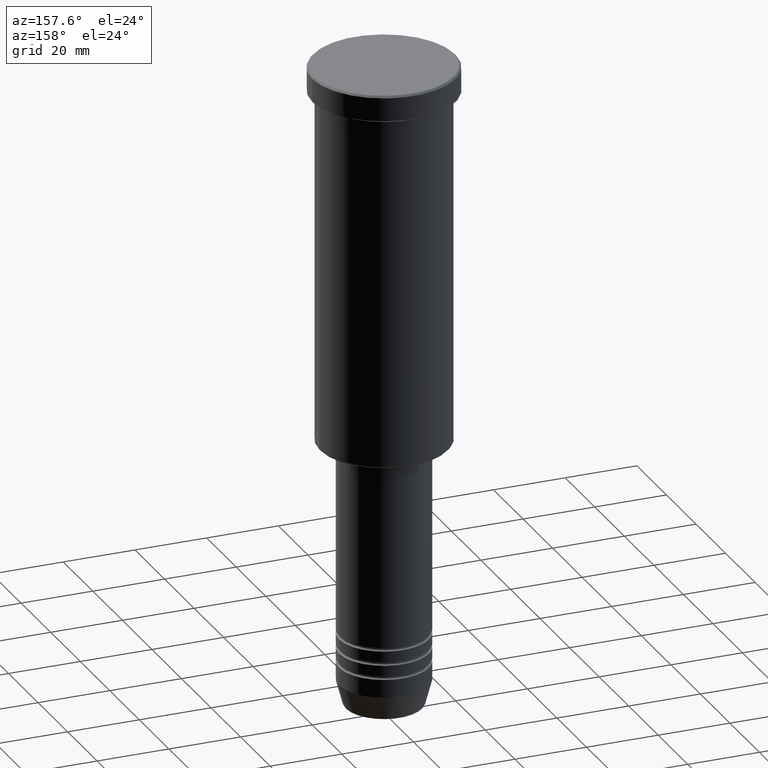
[diagram: clean part render]
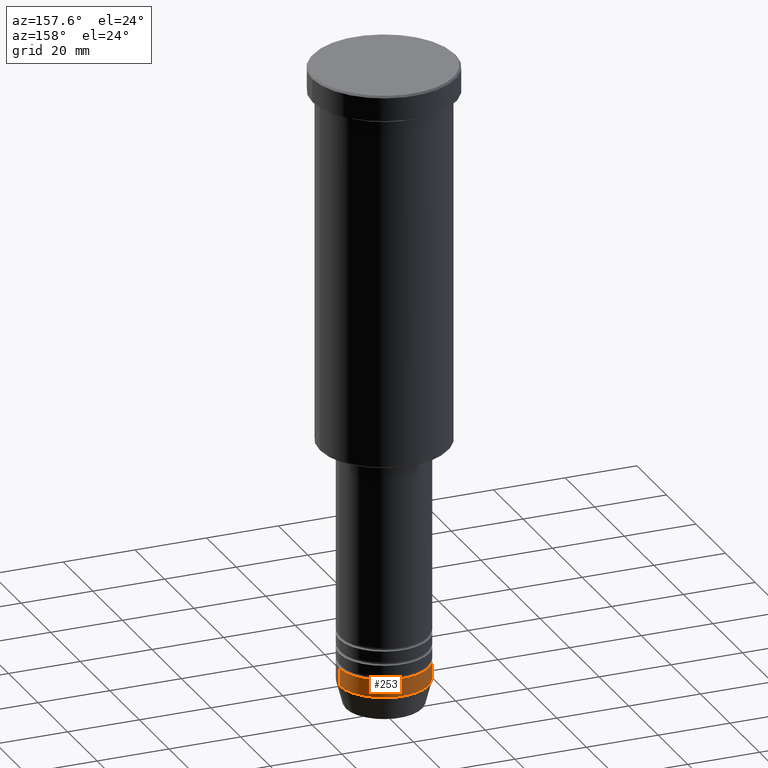
[diagram: same view with one face highlighted and labeled with its STEP entity id]
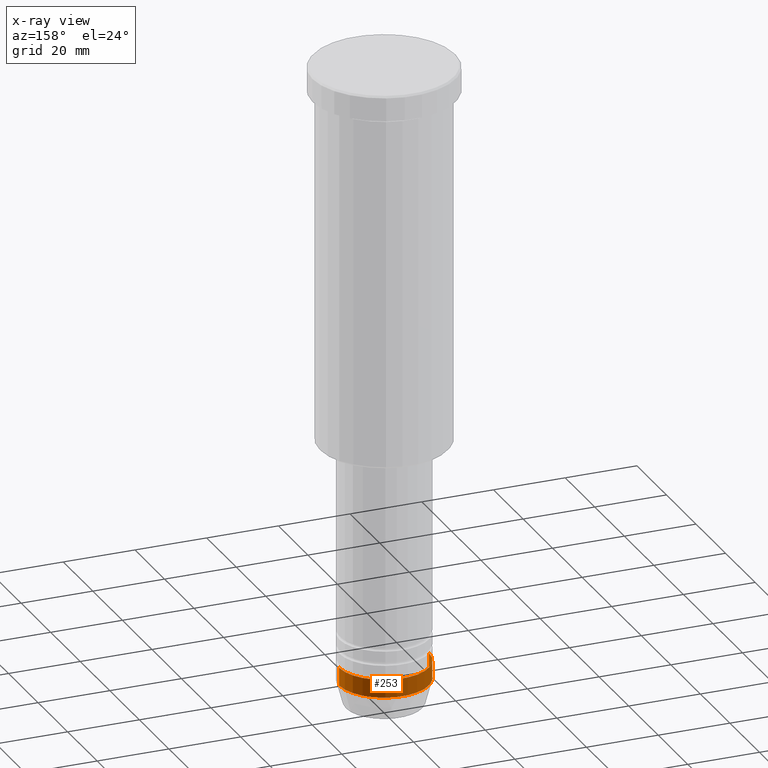
[diagram: x-ray of the same camera — body ghosted, the highlighted face saturated]
A machine part, auxiliary view. The second image highlights one B-rep face of the part: STEP entity #253.
The next image is the same camera in x-ray: the body ghosted, the highlighted face saturated — about 0% of this face is hidden behind the body in this view.
In plain terms, the highlighted cylindrical surface (partial cylindrical patch) has radius 12.5 mm, axis along (-0, -0, 1).
Its self-contained STEP definition (entity closure, byte-faithful):
#34 = ORIENTED_EDGE ( 'NONE', *, *, #123, .F. ) ;
#46 = VECTOR ( 'NONE', #396, 1000.000000000000000 ) ;
#79 = EDGE_LOOP ( 'NONE', ( #885, #872, #481, #34 ) ) ;
#111 = DIRECTION ( 'NONE',  ( -0.000000000000000000, -0.000000000000000000, 1.000000000000000000 ) ) ;
#123 = EDGE_CURVE ( 'NONE', #826, #556, #838, .T. ) ;
#210 = CARTESIAN_POINT ( 'NONE',  ( 12.50000000000000000, 0.000000000000000000, 0.000000000000000000 ) ) ;
#218 = DIRECTION ( 'NONE',  ( 1.000000000000000000, 0.000000000000000000, 0.000000000000000000 ) ) ;
#223 = VECTOR ( 'NONE', #465, 1000.000000000000000 ) ;
#251 = DIRECTION ( 'NONE',  ( 1.000000000000000000, 0.000000000000000000, 0.000000000000000000 ) ) ;
#253 = ADVANCED_FACE ( 'NONE', ( #804 ), #522, .T. ) ;
#284 = CARTESIAN_POINT ( 'NONE',  ( 12.50000000000000000, 0.000000000000000000, -173.0000000000000284 ) ) ;
#300 = VERTEX_POINT ( 'NONE', #978 ) ;
#313 = CARTESIAN_POINT ( 'NONE',  ( 12.50000000000000000, 0.000000000000000000, -168.0000000000000000 ) ) ;
#348 = AXIS2_PLACEMENT_3D ( 'NONE', #578, #111, #218 ) ;
#389 = DIRECTION ( 'NONE',  ( -0.000000000000000000, -0.000000000000000000, 1.000000000000000000 ) ) ;
#396 = DIRECTION ( 'NONE',  ( -0.000000000000000000, -0.000000000000000000, 1.000000000000000000 ) ) ;
#465 = DIRECTION ( 'NONE',  ( -0.000000000000000000, -0.000000000000000000, 1.000000000000000000 ) ) ;
#481 = ORIENTED_EDGE ( 'NONE', *, *, #1047, .F. ) ;
#522 = CYLINDRICAL_SURFACE ( 'NONE', #707, 12.50000000000000000 ) ;
#543 = EDGE_CURVE ( 'NONE', #826, #1159, #1154, .T. ) ;
#553 = CIRCLE ( 'NONE', #348, 12.50000000000000000 ) ;
#556 = VERTEX_POINT ( 'NONE', #313 ) ;
#577 = EDGE_CURVE ( 'NONE', #1159, #300, #761, .T. ) ;
#578 = CARTESIAN_POINT ( 'NONE',  ( 0.000000000000000000, 0.000000000000000000, -168.0000000000000000 ) ) ;
#579 = CARTESIAN_POINT ( 'NONE',  ( 0.000000000000000000, 0.000000000000000000, -173.0000000000000284 ) ) ;
#622 = CARTESIAN_POINT ( 'NONE',  ( 0.000000000000000000, 0.000000000000000000, 0.000000000000000000 ) ) ;
#707 = AXIS2_PLACEMENT_3D ( 'NONE', #622, #875, #251 ) ;
#761 = LINE ( 'NONE', #1034, #46 ) ;
#804 = FACE_OUTER_BOUND ( 'NONE', #79, .T. ) ;
#826 = VERTEX_POINT ( 'NONE', #284 ) ;
#838 = LINE ( 'NONE', #210, #223 ) ;
#847 = AXIS2_PLACEMENT_3D ( 'NONE', #579, #389, #856 ) ;
#856 = DIRECTION ( 'NONE',  ( 1.000000000000000000, 0.000000000000000000, 0.000000000000000000 ) ) ;
#872 = ORIENTED_EDGE ( 'NONE', *, *, #577, .T. ) ;
#875 = DIRECTION ( 'NONE',  ( -0.000000000000000000, -0.000000000000000000, 1.000000000000000000 ) ) ;
#885 = ORIENTED_EDGE ( 'NONE', *, *, #543, .T. ) ;
#886 = CARTESIAN_POINT ( 'NONE',  ( -12.50000000000000000, 1.530808498934191521E-15, -173.0000000000000284 ) ) ;
#978 = CARTESIAN_POINT ( 'NONE',  ( -12.50000000000000000, 1.530808498934191521E-15, -168.0000000000000000 ) ) ;
#1034 = CARTESIAN_POINT ( 'NONE',  ( -12.50000000000000000, 1.530808498934191521E-15, 0.000000000000000000 ) ) ;
#1047 = EDGE_CURVE ( 'NONE', #556, #300, #553, .T. ) ;
#1154 = CIRCLE ( 'NONE', #847, 12.50000000000000000 ) ;
#1159 = VERTEX_POINT ( 'NONE', #886 ) ;